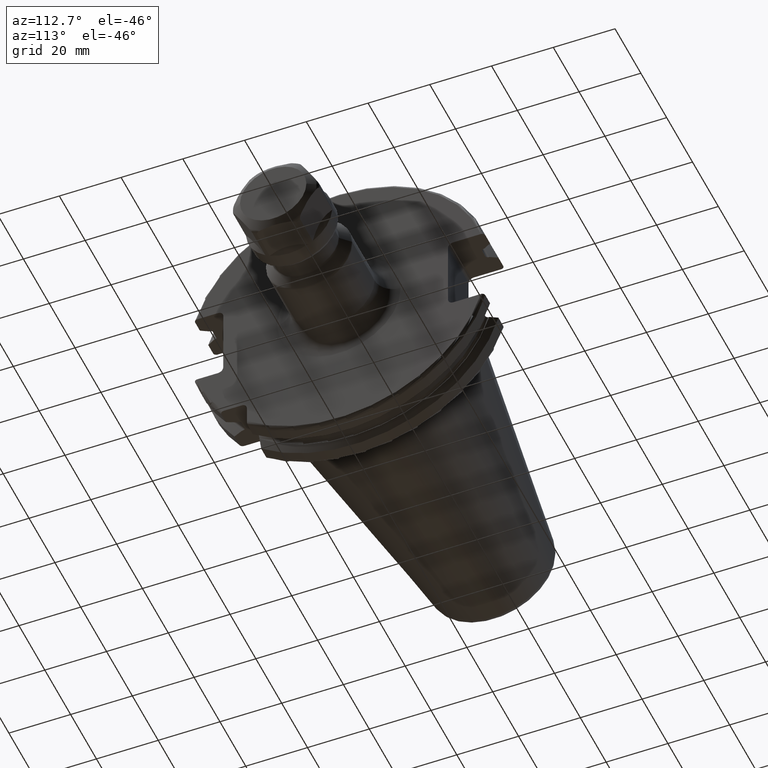
[diagram: clean part render]
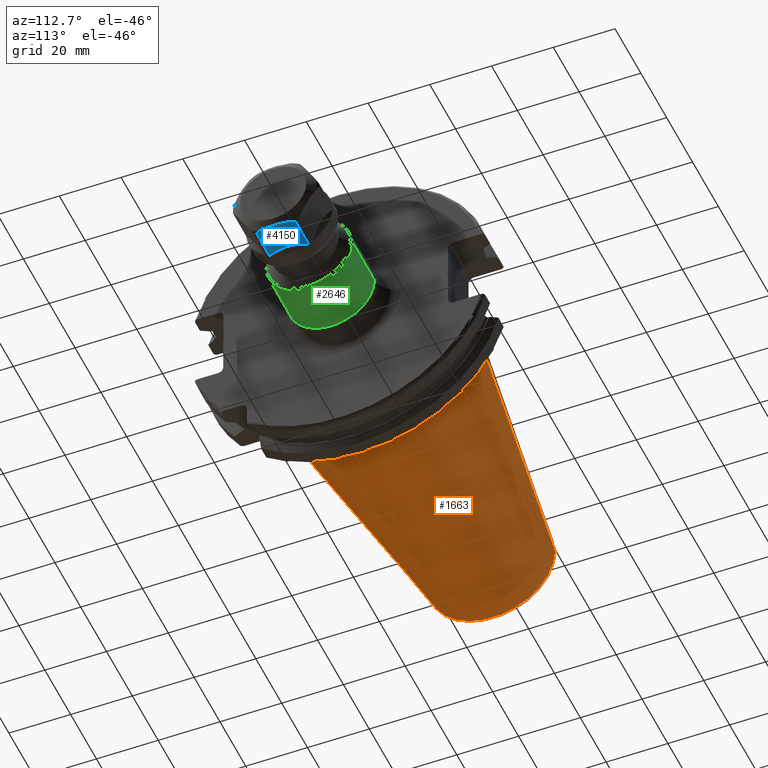
[diagram: same view with three faces highlighted in distinct colors, each labeled with its STEP entity id]
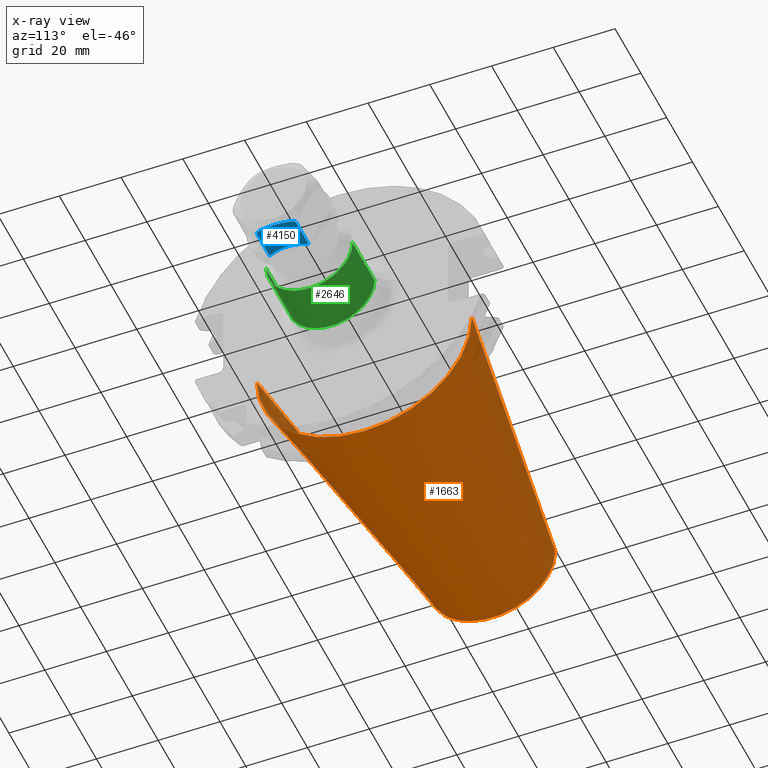
[diagram: x-ray of the same camera — body ghosted, the three highlighted faces saturated]
A machine part, auxiliary view with three faces highlighted in distinct colors.
The next image is the same camera in x-ray (body ghosted, the three faces saturated) — at least one of them is partly hidden behind the body in this view.
Their STEP definitions:

[orange] entity #1663 — the highlighted conical surface has half-angle 8.298 deg.
#32=CARTESIAN_POINT('',(-9.967471700563E1,0.E0,0.E0));
#33=DIRECTION('',(-1.E0,0.E0,0.E0));
#34=DIRECTION('',(0.E0,1.E0,0.E0));
#35=AXIS2_PLACEMENT_3D('',#32,#33,#34);
#47=DIRECTION('',(-9.895312636440E-1,-1.443186691705E-1,0.E0));
#48=VECTOR('',#47,1.002343617797E2);
#49=CARTESIAN_POINT('',(-4.896823332305E-1,3.485358204157E1,0.E0));
#50=LINE('',#49,#48);
#51=DIRECTION('',(-9.895312636440E-1,1.443186691705E-1,0.E0));
#52=VECTOR('',#51,1.002343617797E2);
#53=CARTESIAN_POINT('',(-4.896823332305E-1,-3.485358204157E1,0.E0));
#54=LINE('',#53,#52);
#55=CARTESIAN_POINT('',(-4.896823332305E-1,0.E0,0.E0));
#56=DIRECTION('',(-1.E0,0.E0,0.E0));
#57=DIRECTION('',(0.E0,1.E0,0.E0));
#58=AXIS2_PLACEMENT_3D('',#55,#56,#57);
#1318=CARTESIAN_POINT('',(-9.967471700563E1,2.038789234437E1,0.E0));
#1320=VERTEX_POINT('',#1318);
#1322=CARTESIAN_POINT('',(-9.967471700563E1,-2.038789234437E1,0.E0));
#1324=VERTEX_POINT('',#1322);
#1386=CARTESIAN_POINT('',(-4.896823332305E-1,3.485358204157E1,0.E0));
#1387=VERTEX_POINT('',#1386);
#1388=CARTESIAN_POINT('',(-4.896823332305E-1,-3.485358204157E1,0.E0));
#1389=VERTEX_POINT('',#1388);
#1651=CARTESIAN_POINT('',(-5.008219966943E1,0.E0,0.E0));
#1652=DIRECTION('',(1.E0,0.E0,0.E0));
#1653=DIRECTION('',(0.E0,-1.E0,0.E0));
#1654=AXIS2_PLACEMENT_3D('',#1651,#1652,#1653);
#1655=CONICAL_SURFACE('',#1654,2.762073719297E1,8.297826828206E0);
#1656=ORIENTED_EDGE('',*,*,#1641,.T.);
#1657=ORIENTED_EDGE('',*,*,#1618,.T.);
#1658=ORIENTED_EDGE('',*,*,#1645,.F.);
#1660=ORIENTED_EDGE('',*,*,#1659,.F.);
#1661=EDGE_LOOP('',(#1656,#1657,#1658,#1660));
#1662=FACE_OUTER_BOUND('',#1661,.F.);
#1663=ADVANCED_FACE('',(#1662),#1655,.T.);
#36=CIRCLE('',#35,2.038789234437E1);
#59=CIRCLE('',#58,3.485358204157E1);
#1618=EDGE_CURVE('',#1320,#1324,#36,.T.);
#1641=EDGE_CURVE('',#1387,#1320,#50,.T.);
#1645=EDGE_CURVE('',#1389,#1324,#54,.T.);
#1659=EDGE_CURVE('',#1387,#1389,#59,.T.);

[blue] entity #4150 — the highlighted planar face has unit normal (0, 0, 1).
#3324=CARTESIAN_POINT('',(1.628445554338E1,-4.758216577669E0,-1.25E1));
#3325=CARTESIAN_POINT('',(1.644888995402E1,-3.957639929005E0,-1.25E1));
#3326=CARTESIAN_POINT('',(1.670318968294E1,-2.364269791047E0,-1.25E1));
#3327=CARTESIAN_POINT('',(1.683288207547E1,5.894560252869E-4,-1.25E1));
#3328=CARTESIAN_POINT('',(1.670310415631E1,2.364813039561E0,-1.25E1));
#3329=CARTESIAN_POINT('',(1.644884551611E1,3.957856282460E0,-1.25E1));
#3330=CARTESIAN_POINT('',(1.628445554338E1,4.758216577669E0,-1.25E1));
#3424=CARTESIAN_POINT('',(1.628445554338E1,4.758216577669E0,-1.25E1));
#3425=CARTESIAN_POINT('',(1.625780514735E1,4.887968523483E0,-1.25E1));
#3426=CARTESIAN_POINT('',(1.619635457926E1,5.141602008187E0,-1.25E1));
#3427=CARTESIAN_POINT('',(1.606561669937E1,5.515629625230E0,-1.25E1));
#3428=CARTESIAN_POINT('',(1.589737600801E1,5.841380073054E0,-1.25E1));
#3429=CARTESIAN_POINT('',(1.569295978880E1,6.098496038599E0,-1.25E1));
#3430=CARTESIAN_POINT('',(1.545738513995E1,6.265053289239E0,-1.25E1));
#3431=CARTESIAN_POINT('',(1.528945671766E1,6.304760106459E0,-1.25E1));
#3432=CARTESIAN_POINT('',(1.520192378865E1,6.304760106459E0,-1.25E1));
#3444=CARTESIAN_POINT('',(1.520192378865E1,-6.304760106459E0,-1.25E1));
#3445=CARTESIAN_POINT('',(1.529096662636E1,-6.304760106459E0,-1.25E1));
#3446=CARTESIAN_POINT('',(1.546146335283E1,-6.263924243604E0,-1.25E1));
#3447=CARTESIAN_POINT('',(1.570142638899E1,-6.090799069305E0,-1.25E1));
#3448=CARTESIAN_POINT('',(1.590512360841E1,-5.828820593103E0,-1.25E1));
#3449=CARTESIAN_POINT('',(1.607010427330E1,-5.504238892291E0,-1.25E1));
#3450=CARTESIAN_POINT('',(1.619774346523E1,-5.136026796860E0,-1.25E1));
#3451=CARTESIAN_POINT('',(1.625821277607E1,-4.885983914320E0,-1.25E1));
#3452=CARTESIAN_POINT('',(1.628445554338E1,-4.758216577669E0,-1.25E1));
#3579=CARTESIAN_POINT('',(6.999998794328E0,-1.986758806456E-4,
-1.250497818479E1));
#3580=CARTESIAN_POINT('',(6.999995386402E0,-1.083552144487E-1,
-1.250497818479E1));
#3581=CARTESIAN_POINT('',(7.011782449164E0,-3.323384141906E-1,
-1.249768961639E1));
#3582=CARTESIAN_POINT('',(6.991282432065E0,-6.947568549463E-1,
-1.250061906543E1));
#3583=CARTESIAN_POINT('',(6.965721694483E0,-1.081329068169E0,
-1.249983412187E1));
#3584=CARTESIAN_POINT('',(6.922875351362E0,-1.498043433085E0,
-1.250004444709E1));
#3585=CARTESIAN_POINT('',(6.861884217492E0,-1.948292958935E0,
-1.249998808977E1));
#3586=CARTESIAN_POINT('',(6.778307623772E0,-2.434583974992E0,
-1.250000319384E1));
#3587=CARTESIAN_POINT('',(6.667915939400E0,-2.960308612542E0,
-1.249999913487E1));
#3588=CARTESIAN_POINT('',(6.525148358033E0,-3.530599340508E0,
-1.250000026669E1));
#3589=CARTESIAN_POINT('',(6.344629653681E0,-4.147369585013E0,
-1.249999979838E1));
#3590=CARTESIAN_POINT('',(6.120966968902E0,-4.812008049205E0,
-1.250000053980E1));
#3591=CARTESIAN_POINT('',(5.848034096261E0,-5.527648946893E0,
-1.249999804241E1));
#3592=CARTESIAN_POINT('',(5.629244177607E0,-6.040161300141E0,
-1.250000420783E1));
#3593=CARTESIAN_POINT('',(5.510095954753E0,-6.304759140730E0,
-1.250000420783E1));
#3595=DIRECTION('',(9.999999999999E-1,-9.964367159688E-8,4.341630987369E-7));
#3596=VECTOR('',#3595,9.691827833895E0);
#3597=CARTESIAN_POINT('',(5.510095954753E0,-6.304759140730E0,
-1.250000420783E1));
#3598=LINE('',#3597,#3596);
#3599=DIRECTION('',(-1.E0,0.E0,0.E0));
#3600=VECTOR('',#3599,9.691824900383E0);
#3601=CARTESIAN_POINT('',(1.520192378865E1,6.304760106459E0,-1.25E1));
#3602=LINE('',#3601,#3600);
#3603=CARTESIAN_POINT('',(5.510098888264E0,6.304760106459E0,-1.25E1));
#3604=CARTESIAN_POINT('',(5.628841325804E0,6.041063634220E0,-1.25E1));
#3605=CARTESIAN_POINT('',(5.846986479544E0,5.530158187536E0,-1.249999999528E1));
#3606=CARTESIAN_POINT('',(6.119413711240E0,4.816268093814E0,-1.250000001653E1));
#3607=CARTESIAN_POINT('',(6.342901567371E0,4.152810405697E0,-1.249999993859E1));
#3608=CARTESIAN_POINT('',(6.523488842305E0,3.536673008155E0,-1.250000022912E1));
#3609=CARTESIAN_POINT('',(6.666467115183E0,2.966599910294E0,-1.249999914493E1));
#3610=CARTESIAN_POINT('',(6.777190694805E0,2.440435295210E0,-1.250000319114E1));
#3611=CARTESIAN_POINT('',(6.860942679123E0,1.954353884047E0,-1.249998809049E1));
#3612=CARTESIAN_POINT('',(6.922096017902E0,1.504569556370E0,-1.250004444690E1));
#3613=CARTESIAN_POINT('',(6.965204285677E0,1.087421014254E0,-1.249983412192E1));
#3614=CARTESIAN_POINT('',(6.991058489792E0,6.992781139853E-1,
-1.250061906542E1));
#3615=CARTESIAN_POINT('',(7.011781137860E0,3.334458988776E-1,
-1.249768961640E1));
#3616=CARTESIAN_POINT('',(7.000002208658E0,1.081611357337E-1,
-1.250497818479E1));
#3617=CARTESIAN_POINT('',(6.999998794328E0,-1.986758806456E-4,
-1.250497818479E1));
#3860=VERTEX_POINT('',#3324);
#3861=VERTEX_POINT('',#3330);
#3872=VERTEX_POINT('',#3432);
#3873=VERTEX_POINT('',#3444);
#3882=CARTESIAN_POINT('',(5.510019594414E0,6.304795814642E0,-1.250007080131E1));
#3883=CARTESIAN_POINT('',(5.510019594414E0,-6.304795289710E0,
-1.250006976046E1));
#3884=VERTEX_POINT('',#3882);
#3885=VERTEX_POINT('',#3883);
#3901=VERTEX_POINT('',#3617);
#4134=CARTESIAN_POINT('',(1.78E1,7.216878364870E0,-1.25E1));
#4135=DIRECTION('',(0.E0,0.E0,1.E0));
#4136=DIRECTION('',(0.E0,-1.E0,0.E0));
#4137=AXIS2_PLACEMENT_3D('',#4134,#4135,#4136);
#4138=PLANE('',#4137);
#4140=ORIENTED_EDGE('',*,*,#4139,.T.);
#4141=ORIENTED_EDGE('',*,*,#3984,.T.);
#4142=ORIENTED_EDGE('',*,*,#4033,.T.);
#4143=ORIENTED_EDGE('',*,*,#3935,.T.);
#4144=ORIENTED_EDGE('',*,*,#4020,.T.);
#4145=ORIENTED_EDGE('',*,*,#3988,.T.);
#4147=ORIENTED_EDGE('',*,*,#4146,.T.);
#4148=EDGE_LOOP('',(#4140,#4141,#4142,#4143,#4144,#4145,#4147));
#4149=FACE_OUTER_BOUND('',#4148,.F.);
#4150=ADVANCED_FACE('',(#4149),#4138,.F.);
#3331=B_SPLINE_CURVE_WITH_KNOTS('',3,(#3324,#3325,#3326,#3327,#3328,#3329,
#3330),.UNSPECIFIED.,.F.,.F.,(4,1,1,1,4),(0.E0,2.5E-1,5.E-1,7.5E-1,1.E0),
.UNSPECIFIED.);
#3433=B_SPLINE_CURVE_WITH_KNOTS('',3,(#3424,#3425,#3426,#3427,#3428,#3429,#3430,
#3431,#3432),.UNSPECIFIED.,.F.,.F.,(4,1,1,1,1,1,4),(0.E0,1.666666666667E-1,
3.333333333333E-1,5.E-1,6.666666666667E-1,8.333333333333E-1,1.E0),
.UNSPECIFIED.);
#3453=B_SPLINE_CURVE_WITH_KNOTS('',3,(#3444,#3445,#3446,#3447,#3448,#3449,#3450,
#3451,#3452),.UNSPECIFIED.,.F.,.F.,(4,1,1,1,1,1,4),(0.E0,1.666666666667E-1,
3.333333333333E-1,5.E-1,6.666666666667E-1,8.333333333333E-1,1.E0),
.UNSPECIFIED.);
#3594=B_SPLINE_CURVE_WITH_KNOTS('',3,(#3579,#3580,#3581,#3582,#3583,#3584,#3585,
#3586,#3587,#3588,#3589,#3590,#3591,#3592,#3593),.UNSPECIFIED.,.F.,.F.,(4,1,1,1,
1,1,1,1,1,1,1,1,4),(0.E0,8.333333333333E-2,1.666666666667E-1,2.5E-1,
3.333333333333E-1,4.166666666667E-1,5.E-1,5.833333333333E-1,6.666666666667E-1,
7.5E-1,8.333333333333E-1,9.166666666667E-1,1.E0),.UNSPECIFIED.);
#3618=B_SPLINE_CURVE_WITH_KNOTS('',3,(#3603,#3604,#3605,#3606,#3607,#3608,#3609,
#3610,#3611,#3612,#3613,#3614,#3615,#3616,#3617),.UNSPECIFIED.,.F.,.F.,(4,1,1,1,
1,1,1,1,1,1,1,1,4),(0.E0,8.333333333333E-2,1.666666666667E-1,2.5E-1,
3.333333333333E-1,4.166666666667E-1,5.E-1,5.833333333333E-1,6.666666666667E-1,
7.5E-1,8.333333333333E-1,9.166666666667E-1,1.E0),.UNSPECIFIED.);
#3935=EDGE_CURVE('',#3860,#3861,#3331,.T.);
#3984=EDGE_CURVE('',#3885,#3873,#3598,.T.);
#3988=EDGE_CURVE('',#3872,#3884,#3602,.T.);
#4020=EDGE_CURVE('',#3861,#3872,#3433,.T.);
#4033=EDGE_CURVE('',#3873,#3860,#3453,.T.);
#4139=EDGE_CURVE('',#3901,#3885,#3594,.T.);
#4146=EDGE_CURVE('',#3884,#3901,#3618,.T.);

[green] entity #2646 — the highlighted cylindrical surface (partial cylindrical patch) has radius 14 mm, axis along (1, 0, 0).
#982=CARTESIAN_POINT('',(4.198578643763E1,0.E0,0.E0));
#983=DIRECTION('',(-1.E0,0.E0,0.E0));
#984=DIRECTION('',(0.E0,1.E0,0.E0));
#985=AXIS2_PLACEMENT_3D('',#982,#983,#984);
#987=DIRECTION('',(-1.E0,0.E0,2.808079089531E-13));
#988=VECTOR('',#987,1.693578643763E1);
#989=CARTESIAN_POINT('',(4.198578643763E1,1.4E1,-2.090046586199E-12));
#990=LINE('',#989,#988);
#991=CARTESIAN_POINT('',(2.505E1,0.E0,0.E0));
#992=DIRECTION('',(1.E0,0.E0,0.E0));
#993=DIRECTION('',(0.E0,-1.E0,0.E0));
#994=AXIS2_PLACEMENT_3D('',#991,#992,#993);
#996=DIRECTION('',(-1.E0,0.E0,-2.808092457122E-13));
#997=VECTOR('',#996,1.693578643763E1);
#998=CARTESIAN_POINT('',(4.198578643763E1,-1.4E1,2.089605904416E-12));
#999=LINE('',#998,#997);
#1551=CARTESIAN_POINT('',(2.505E1,-1.4E1,0.E0));
#1552=CARTESIAN_POINT('',(2.505E1,1.4E1,0.E0));
#1553=VERTEX_POINT('',#1551);
#1554=VERTEX_POINT('',#1552);
#1563=CARTESIAN_POINT('',(4.198578643763E1,1.4E1,0.E0));
#1564=CARTESIAN_POINT('',(4.198578643763E1,-1.4E1,0.E0));
#1565=VERTEX_POINT('',#1563);
#1566=VERTEX_POINT('',#1564);
#2635=CARTESIAN_POINT('',(1.70325E1,0.E0,0.E0));
#2636=DIRECTION('',(1.E0,0.E0,0.E0));
#2637=DIRECTION('',(0.E0,-1.E0,0.E0));
#2638=AXIS2_PLACEMENT_3D('',#2635,#2636,#2637);
#2639=CYLINDRICAL_SURFACE('',#2638,1.4E1);
#2640=ORIENTED_EDGE('',*,*,#2626,.F.);
#2641=ORIENTED_EDGE('',*,*,#2601,.T.);
#2642=ORIENTED_EDGE('',*,*,#2571,.F.);
#2643=ORIENTED_EDGE('',*,*,#2598,.F.);
#2644=EDGE_LOOP('',(#2640,#2641,#2642,#2643));
#2645=FACE_OUTER_BOUND('',#2644,.F.);
#2646=ADVANCED_FACE('',(#2645),#2639,.T.);
#986=CIRCLE('',#985,1.4E1);
#995=CIRCLE('',#994,1.4E1);
#2571=EDGE_CURVE('',#1553,#1554,#995,.T.);
#2598=EDGE_CURVE('',#1566,#1553,#999,.T.);
#2601=EDGE_CURVE('',#1565,#1554,#990,.T.);
#2626=EDGE_CURVE('',#1565,#1566,#986,.T.);